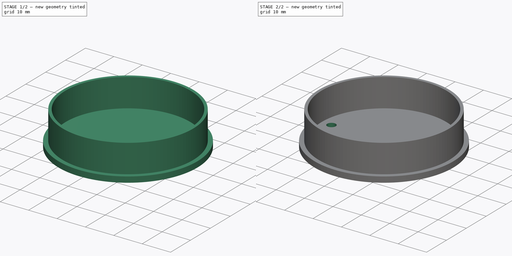
[diagram: build sequence overview — one tinted view per stage of 2, left to right]
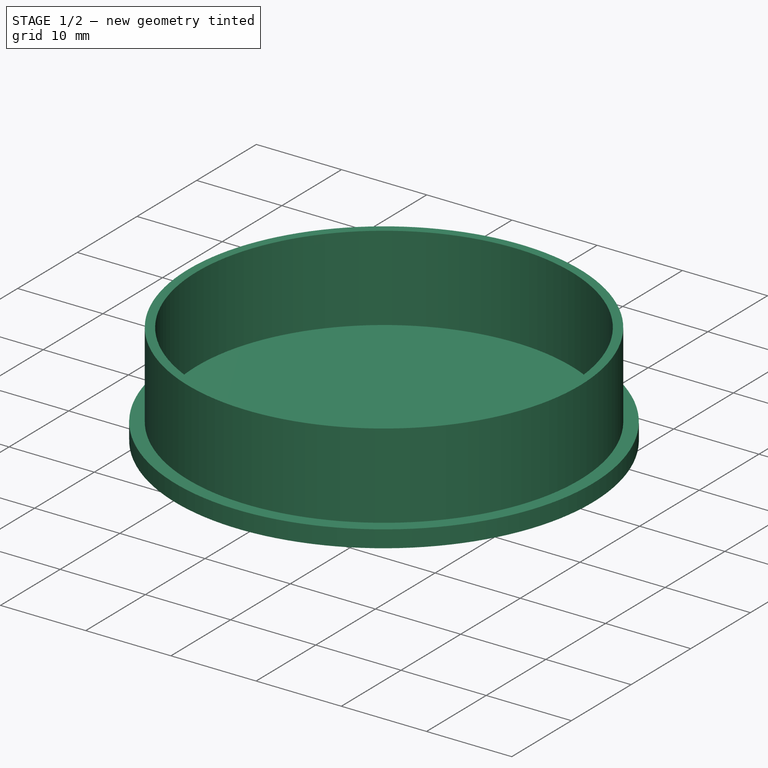
[diagram: stage 1 of 2 — iso view after this stage's code; geometry added in this stage tinted green]
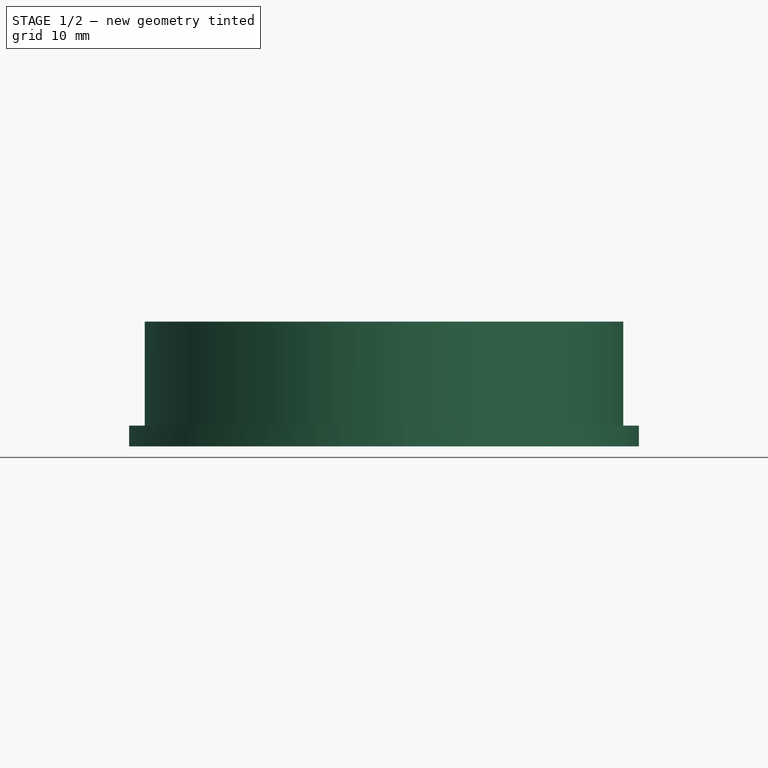
[diagram: stage 1 of 2 — front view after this stage's code; geometry added in this stage tinted green]
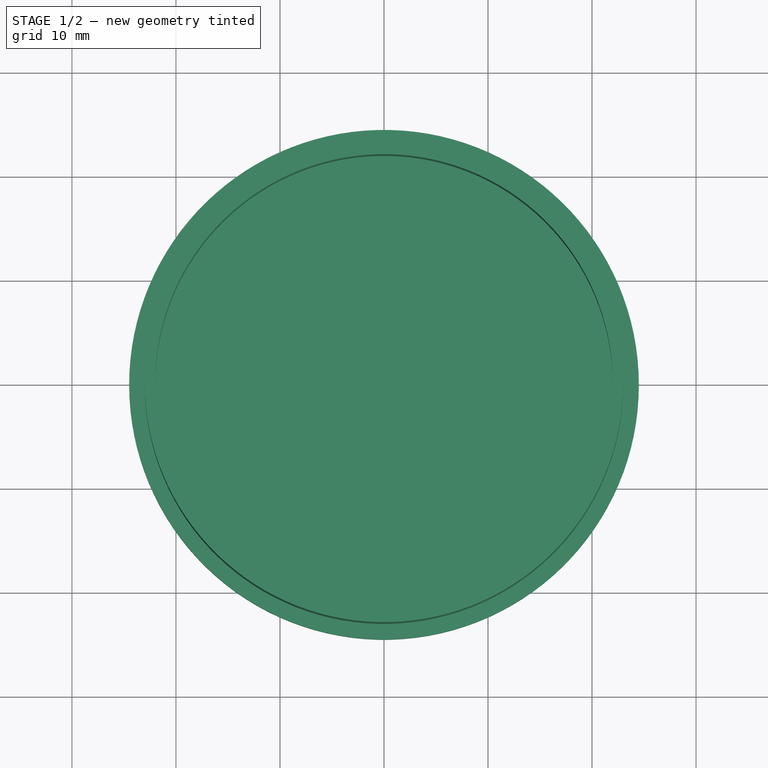
[diagram: stage 1 of 2 — top view after this stage's code; geometry added in this stage tinted green]
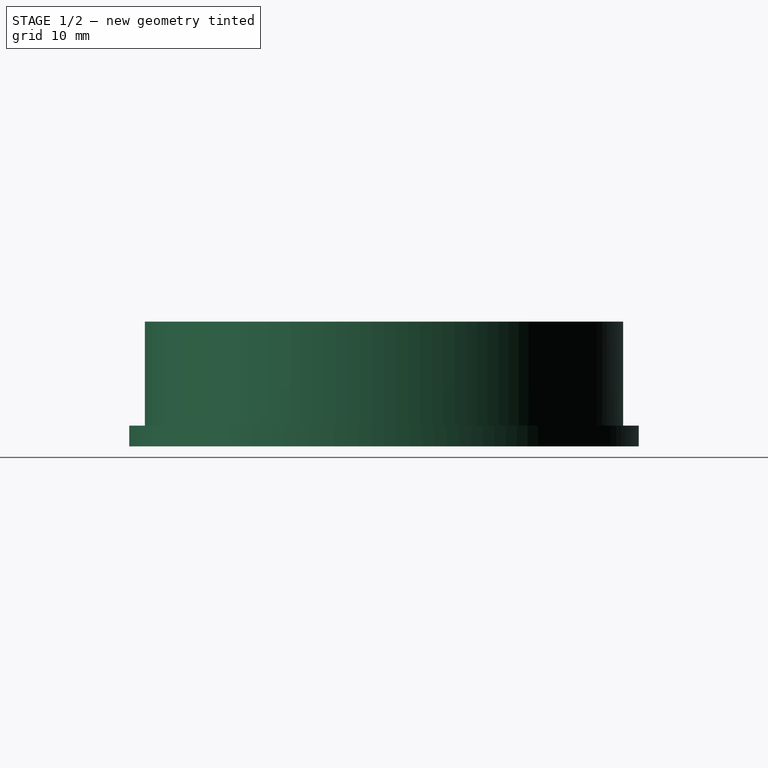
[diagram: stage 1 of 2 — right view after this stage's code; geometry added in this stage tinted green]
FCSTD DOCUMENT  (FreeCAD 0.16R)
Label: PidFan-Tapa
License: All rights reserved
LicenseURL: http://en.wikipedia.org/wiki/All_rights_reserved
objects: Sketcher::SketchObject×2, Part::Cylinder×1, PartDesign::Pad×1, PartDesign::Pocket×1
note: 7 computed .brp shape members not serialized (recipe doc carries the construction recipe); baked Part::Feature solids carry a one-line shape summary decoded from their .brp

FEATURE [Part::Cylinder] Cylinder001  label="Tope"
  Angle = 360
  Height = 2
  Radius = 24.5
FEATURE [Sketcher::SketchObject] Sketch  label="Tope Soporte"
  Placement = pos=(0,0,2) rot=(0,0,1;0rad)
  Support = -> Cylinder001 [Face2]
  sketch-geometry (2):
    g0: Circle CenterX=0 CenterY=0 CenterZ=0 NormalX=0 NormalY=0 NormalZ=1 Radius=22
    g1: Circle CenterX=0 CenterY=0 CenterZ=0 NormalX=0 NormalY=0 NormalZ=1 Radius=23
  constraints (5):
    c: PointOnObject(g0,g-1)
    c: Coincident(g0,g-1)
    c: Radius(g0) = 22
    c: Coincident(g-1,g1)
    c: Radius(g1) = 23
FEATURE [PartDesign::Pad] Pad  label="Tope Pad"
  Length = 10
  Length2 = 100
  Sketch = -> Sketch
  Type = 0
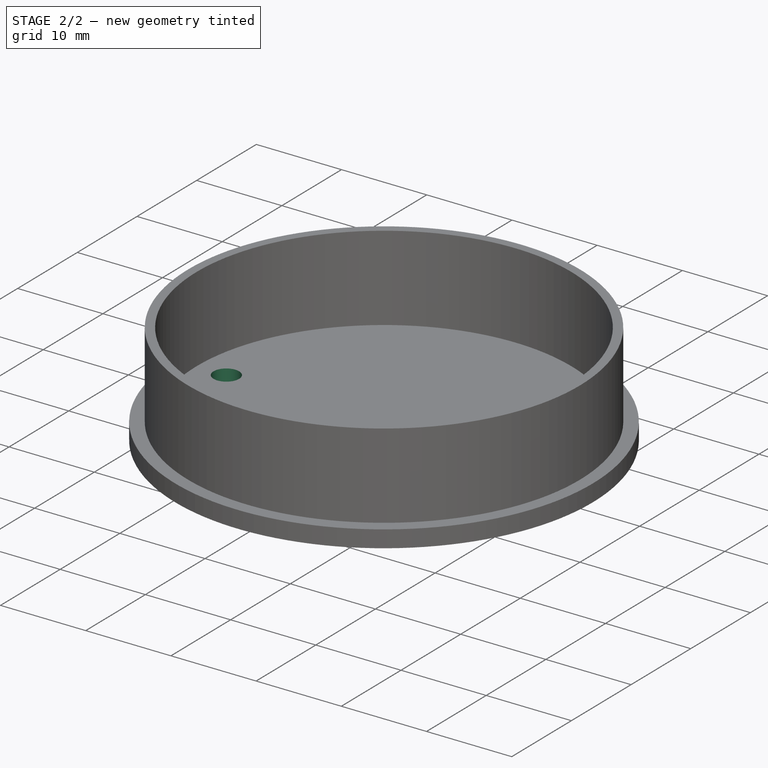
[diagram: stage 2 of 2 — iso view after this stage's code; geometry added in this stage tinted green]
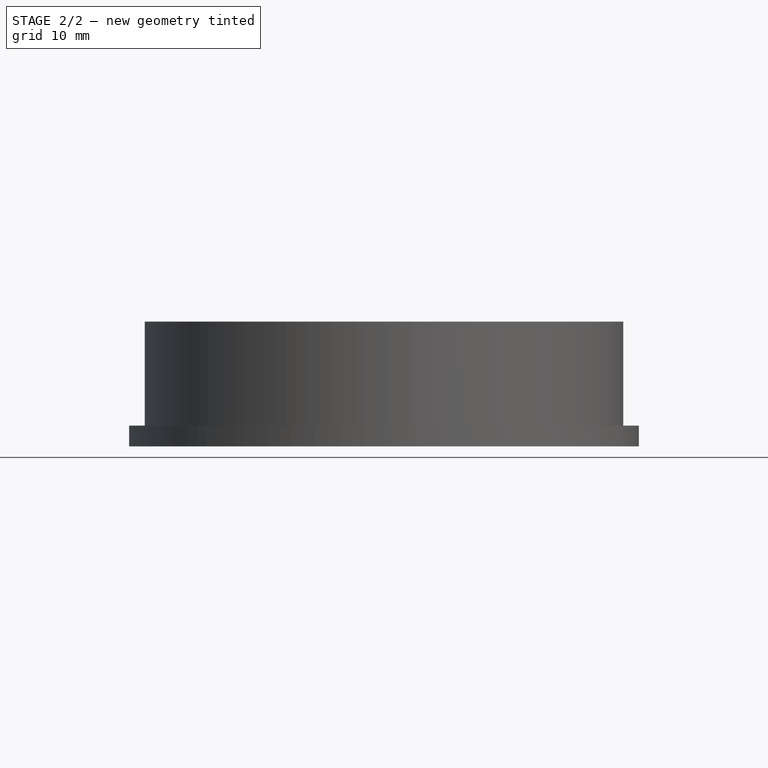
[diagram: stage 2 of 2 — front view after this stage's code; geometry added in this stage tinted green]
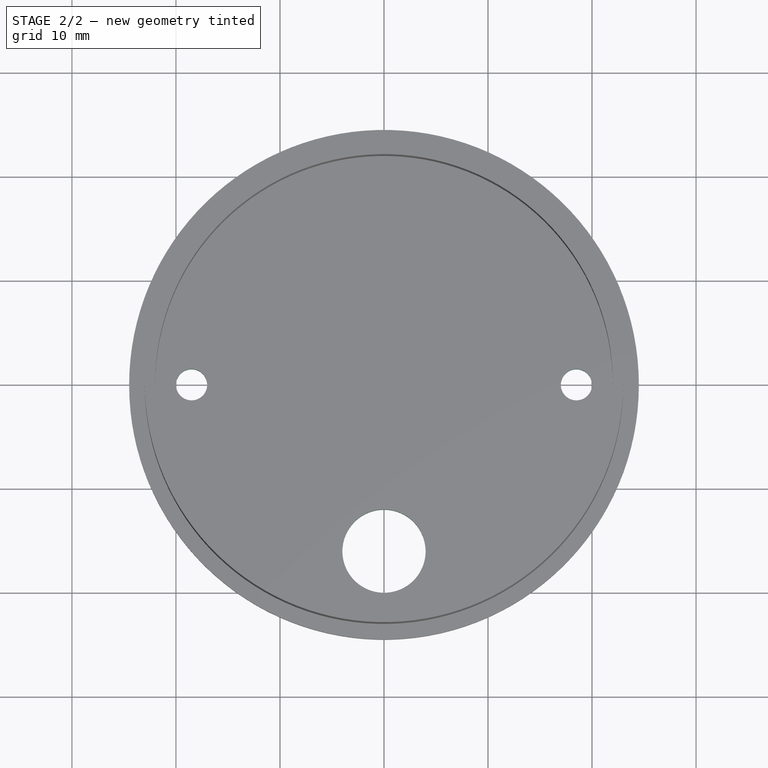
[diagram: stage 2 of 2 — top view after this stage's code; geometry added in this stage tinted green]
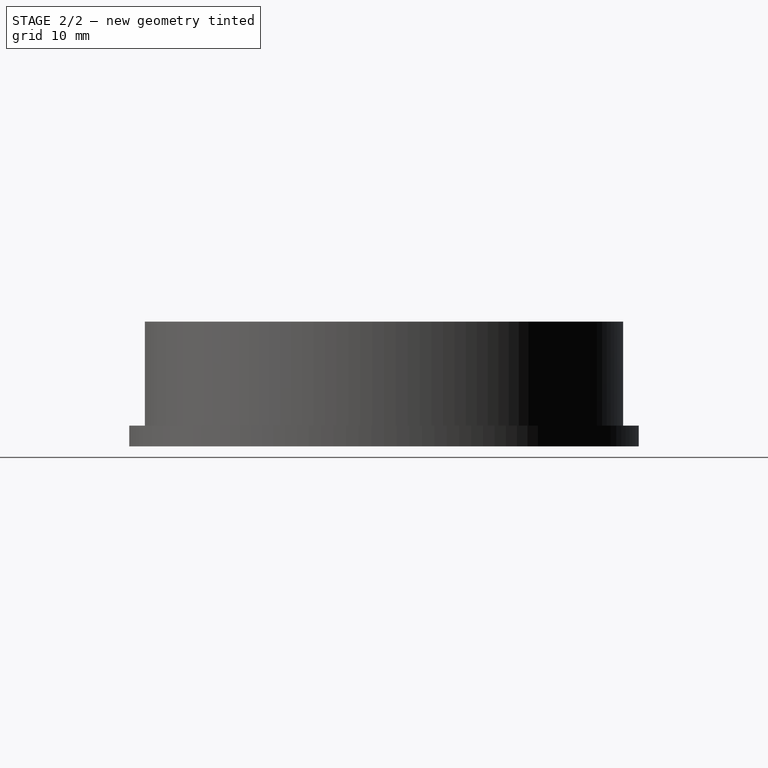
[diagram: stage 2 of 2 — right view after this stage's code; geometry added in this stage tinted green]
FEATURE [Sketcher::SketchObject] Sketch002  label="Tornillos Cables Boceto"
  Placement = pos=(0,0,2) rot=(0,0,1;0rad)
  Support = -> Pad [Face7]
  sketch-geometry (3):
    g0: Circle CenterX=-18.5 CenterY=0 CenterZ=0 NormalX=0 NormalY=0 NormalZ=1 Radius=1.5
    g1: Circle CenterX=18.5 CenterY=0 CenterZ=0 NormalX=0 NormalY=0 NormalZ=1 Radius=1.5
    g2: Circle CenterX=0 CenterY=-16 CenterZ=0 NormalX=0 NormalY=0 NormalZ=1 Radius=4
  constraints (9):
    c: PointOnObject(g0,g-1)
    c: PointOnObject(g1,g-1)
    c: Symmetric(g1,g0,g-2)
    c: Equal(g0,g1)
    c: Radius(g0) = 1.5
    c: DistanceX(g0,g1) = 37
    c: PointOnObject(g2,g-2)
    c: Radius(g2) = 4
    c: DistanceY(g2,g-1) = 16
FEATURE [PartDesign::Pocket] Pocket001  label="Corte Tornillos Cables"
  Length = 10
  Sketch = -> Sketch002
  Type = 0
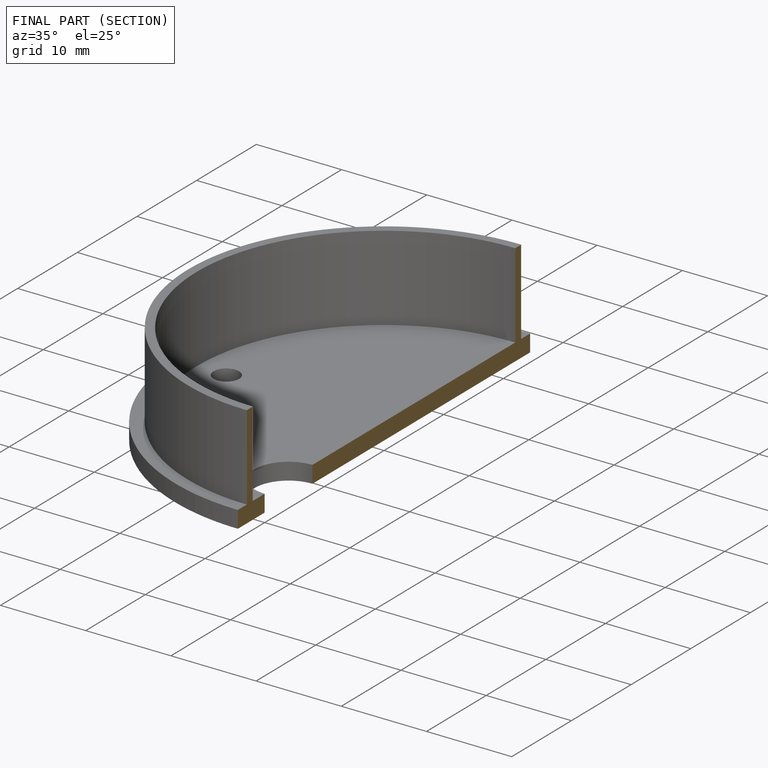
[diagram: finished part — half-section view (interior)]
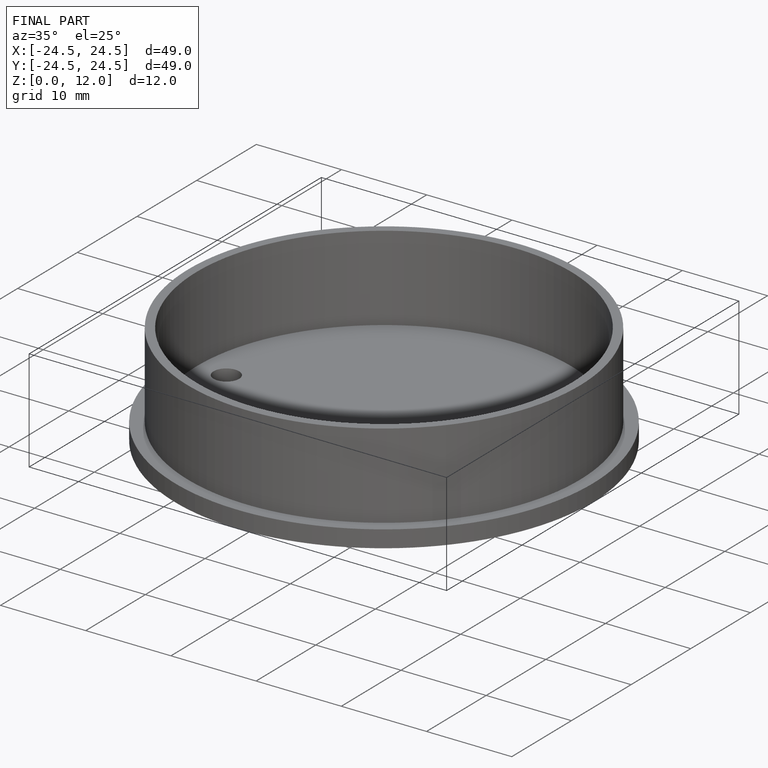
[diagram: finished part — iso view with bounding-box wireframe]
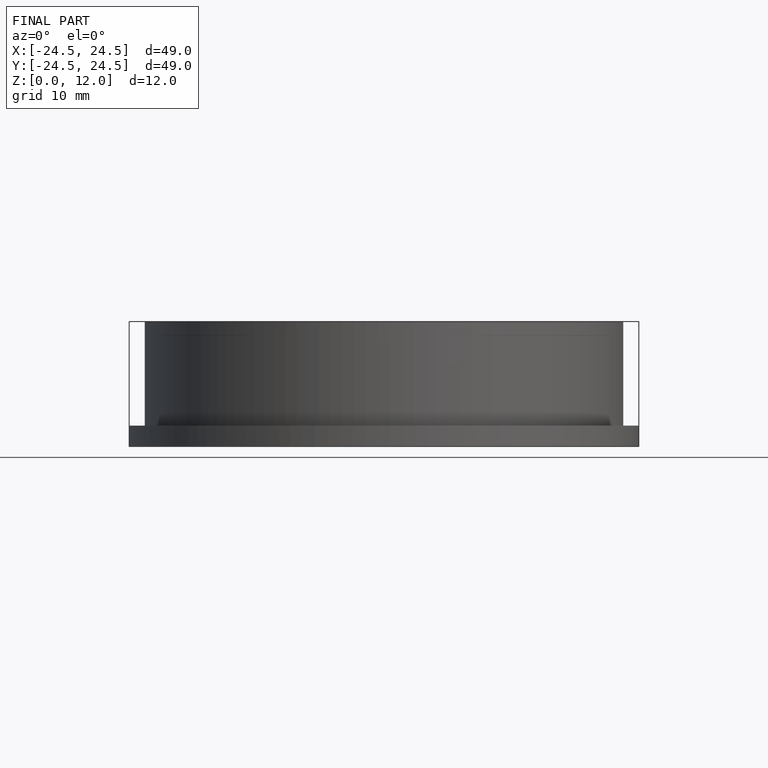
[diagram: finished part — front view with bounding-box wireframe]
